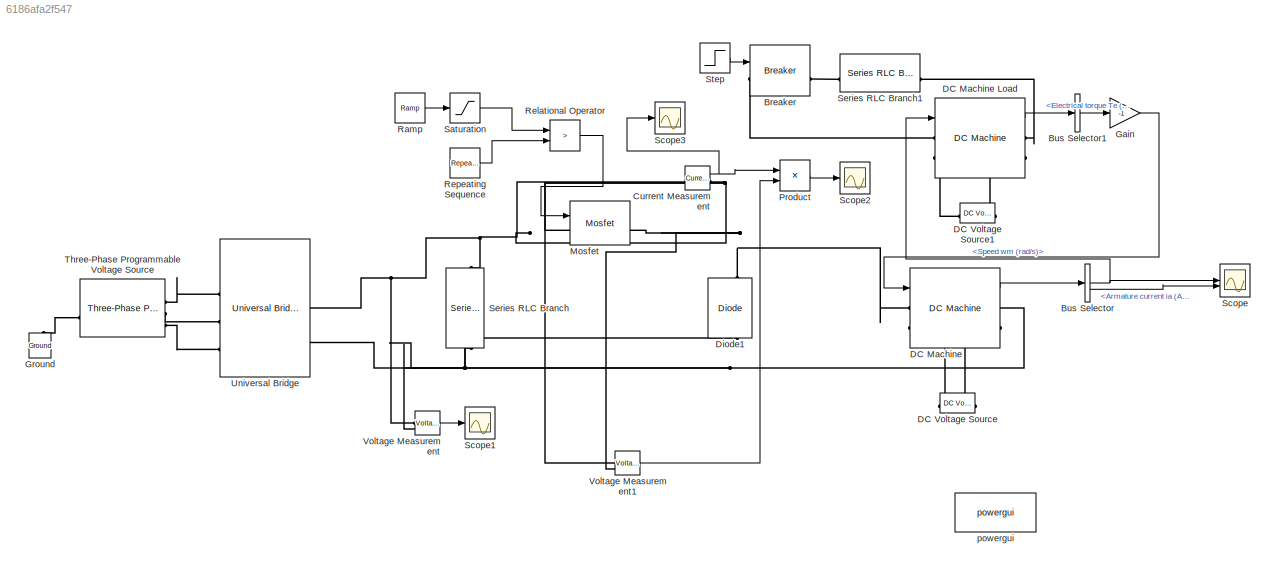
MODEL slx_6186afa2f547
KIND model
CONFIG AbsTol = auto
CONFIG EnableMultiTasking = off
CONFIG FixedStep = auto
CONFIG MaxStep = 1e-5
CONFIG MinStep = auto
CONFIG RelTol = 1e-3
CONFIG SampleTimeConstraint = Unconstrained
CONFIG SolverName = ode23t
CONFIG StartTime = 0.0
CONFIG StopTime = 4
BLOCK [Reference] Breaker  REF=spsBreakerLib/Breaker
  LibrarySourceBlock = sps_lib/Power Grid Elements/Breaker
  SourceBlock = spsBreakerLib/Breaker
  SourceType = Breaker
BLOCK [BusSelector] Bus Selector
  OutputSignals = Speed wm (rad/s),Armature current ia (A)
BLOCK [BusSelector] Bus Selector1
  OutputSignals = Electrical torque Te (n m)
BLOCK [Reference] Current Measurement  REF=spsCurrentMeasurementLib/Current Measurement
  LibrarySourceBlock = sps_lib/Sensors and Measurements/Current Measurement
  SourceBlock = spsCurrentMeasurementLib/Current Measurement
  SourceType = Current Measurement
  UserDataPersistent = on
BLOCK [Reference] DC Machine  REF=spsDCMachineLib/DC Machine
  LibrarySourceBlock = sps_lib/Electrical Machines/DC Machine
  SourceBlock = spsDCMachineLib/DC Machine
  SourceType = DC machine
BLOCK [Reference] DC Machine Load  REF=spsDCMachineLib/DC Machine
  LibrarySourceBlock = sps_lib/Electrical Machines/DC Machine
  SourceBlock = spsDCMachineLib/DC Machine
  SourceType = DC machine
BLOCK [Reference] DC Voltage Source  REF=spsDCVoltageSourceLib/DC Voltage Source
  LibrarySourceBlock = sps_lib/Sources/DC Voltage Source
  NameLocation = right
  SourceBlock = spsDCVoltageSourceLib/DC Voltage Source
  SourceType = DC Voltage Source
BLOCK [Reference] DC Voltage Source1  REF=spsDCVoltageSourceLib/DC Voltage Source
  LibrarySourceBlock = sps_lib/Sources/DC Voltage Source
  NameLocation = right
  SourceBlock = spsDCVoltageSourceLib/DC Voltage Source
  SourceType = DC Voltage Source
BLOCK [Reference] Diode1  REF=spsDiodeLib/Diode
  LibrarySourceBlock = sps_lib/Power Electronics/Diode
  NameLocation = right
  SourceBlock = spsDiodeLib/Diode
  SourceType = Diode
BLOCK [Gain] Gain
  Gain = -1
BLOCK [Reference] Ground  REF=spsGroundLib/Ground
  LibrarySourceBlock = sps_lib/Utilities/Ground
  NameLocation = right
  SourceBlock = spsGroundLib/Ground
  SourceType = Ground
BLOCK [Reference] Mosfet  REF=spsMosfetLib/Mosfet
  LibrarySourceBlock = sps_lib/Power Electronics/Mosfet
  SourceBlock = spsMosfetLib/Mosfet
  SourceType = Mosfet
BLOCK [Product] Product
BLOCK [Reference] Ramp  REF=simulink/Sources/Ramp
  SourceBlock = simulink/Sources/Ramp
  SourceType = Ramp
BLOCK [RelationalOperator] Relational Operator
  InputSameDT = off
  Operator = >
  OutDataTypeStr = boolean
  RndMeth = Simplest
BLOCK [Reference] Repeating Sequence  REF=simulink/Sources/Repeating
Sequence
  SourceBlock = simulink/Sources/Repeating\nSequence
  SourceType = Repeating table
BLOCK [Saturate] Saturation
  LowerLimit = 0
  UpperLimit = 0.85
BLOCK [Scope] Scope
  ActiveDisplayYMaximum = 176.55543890801584
  ActiveDisplayYMinimum = -11.096977701388706
  Floating = off
  GraphicalSettings = {"Style":{"BackgroundColor":[1,1,1],"AxesColor":[1,1,1],"LabelsColor":[0.14901960784313725,0.14901960784313725,0.14901960784313725],"PreserveColors":false,"Visible":[true,true],"LineStyle":["-","-"],"LineWidth":[1.5,1.5],"BarWidth":[0.9,0.9],"LineColor":[[0.9607843137254902,0.4666666666666667,0.1607843137254902],[0.06666666666666667,0.44313725490196076,0.7450980392156863]],"LineFaceAlpha":[1,1],"L...<+2495ch>
  LayoutDimensionsString = [1,1]
  MultipleDisplayCache = [{"MaxYLimMag":168.88504740631285,"MaxYLimReal":176.55543890801584,"MinYLimMag":0,"MinYLimReal":-11.096977701388706,"PlotAsMagnitudePhase":false,"ShowGrid":true,"ShowLegend":true,"Title":"%<SignalLabel>","YLabel":""}]
  NumInputPorts = 2
  ScopeFrameLocation = window
  ShowLegend = on
  WasSavedAsWebScope = on
  WindowPosition = [770.000000,50.000000,766.000000,881.000000,]
BLOCK [Scope] Scope1
  ActiveDisplayYMaximum = 264.4727330125051
  ActiveDisplayYMinimum = 139.47565629905122
  DataLoggingVariableName = ScopeData1
  Floating = off
  GraphicalSettings = {"Style":{"BackgroundColor":[0.12941176470588237,0.12941176470588237,0.12941176470588237],"AxesColor":[0.07058823529411765,0.07058823529411765,0.07058823529411765],"LabelsColor":[0.8509803921568627,0.8509803921568627,0.8509803921568627],"PreserveColors":false,"Visible":[true],"LineStyle":["-"],"LineWidth":[1.5],"BarWidth":[0.9],"LineColor":["auto"],"LineFaceAlpha":[1],"LineEdgeAlpha":[1],"Marker":...<+2338ch>
  MultipleDisplayCache = [{"MaxYLimMag":238.64852082267427,"MaxYLimReal":264.4727330125051,"MinYLimMag":0,"MinYLimReal":139.47565629905122,"PlotAsMagnitudePhase":false,"ShowGrid":true,"ShowLegend":false,"Title":"%<SignalLabel>","YLabel":""}]
  NumInputPorts = 1
  ScopeFrameLocation = window
  WasSavedAsWebScope = on
  WindowPosition = [-1128.000000,199.000000,558.000000,419.000000,]
BLOCK [Scope] Scope2
  ActiveDisplayYMaximum = 296.10934739826007
  ActiveDisplayYMinimum = -195.94044100285524
  DataLoggingVariableName = ScopeData2
  Floating = off
  GraphicalSettings = {"Style":{"BackgroundColor":[1,1,1],"AxesColor":[1,1,1],"LabelsColor":[0,0,0],"PreserveColors":false,"Visible":[true],"LineStyle":["-"],"LineWidth":[1.5],"BarWidth":[0.9],"LineColor":["auto"],"LineFaceAlpha":[1],"LineEdgeAlpha":[1],"Marker":["none"],"FontSize":8.5,"LineTrueColor":[[0.9294117647058824,0.6941176470588235,0.12549019607843137]],"ChannelNames":"","DefaultLegendLabel":["Product"],"PlotT...<+2373ch>
  MultipleDisplayCache = [{"MaxYLimMag":9.00947007254807,"MaxYLimReal":296.10934739826007,"MinYLimMag":0,"MinYLimReal":-195.94044100285524,"PlotAsMagnitudePhase":false,"ShowGrid":true,"ShowLegend":false,"Title":"%<SignalLabel>","YLabel":""}]
  NumInputPorts = 1
  ScopeFrameLocation = window
  Visible = on
  WasSavedAsWebScope = on
  WindowPosition = [441.000000,251.000000,560.000000,420.000000,]
BLOCK [Scope] Scope3
  ActiveDisplayYMaximum = 20.244410717271258
  ActiveDisplayYMinimum = -2.2493956352526823
  DataLoggingVariableName = ScopeData3
  Floating = off
  GraphicalSettings = {"Style":{"BackgroundColor":[0.12941176470588237,0.12941176470588237,0.12941176470588237],"AxesColor":[0.07058823529411765,0.07058823529411765,0.07058823529411765],"LabelsColor":[0.8509803921568627,0.8509803921568627,0.8509803921568627],"PreserveColors":false,"Visible":[true,true,true,true,true,true,true],"LineStyle":["-","-","-","-","-","-","-"],"LineWidth":[1.5,1.5,1.5,1.5,1.5,1.5,1.5],"BarWidth...<+2802ch>
  MultipleDisplayCache = [{"MaxYLimMag":20.244410717271258,"MaxYLimReal":20.244410717271258,"MinYLimMag":0,"MinYLimReal":-2.2493956352526823,"PlotAsMagnitudePhase":false,"ShowGrid":true,"ShowLegend":false,"Title":"%<SignalLabel>","YLabel":""}]
  NumInputPorts = 1
  ScopeFrameLocation = window
  WasSavedAsWebScope = on
  WindowPosition = [488.000000,270.000000,560.000000,420.000000,]
BLOCK [Reference] Series RLC Branch  REF=spsSeriesRLCBranchLib/Series RLC Branch
  LibrarySourceBlock = sps_lib/Passives/Series RLC Branch
  NameLocation = left
  SourceBlock = spsSeriesRLCBranchLib/Series RLC Branch
  SourceType = Series RLC Branch
BLOCK [Reference] Series RLC Branch1  REF=spsSeriesRLCBranchLib/Series RLC Branch
  LibrarySourceBlock = sps_lib/Passives/Series RLC Branch
  SourceBlock = spsSeriesRLCBranchLib/Series RLC Branch
  SourceType = Series RLC Branch
BLOCK [Step] Step
  SampleTime = 0
  Time = 2.5
BLOCK [Reference] Three-Phase Programmable Voltage Source  REF=spsThreePhaseProgrammableVoltageSourceLib/Three-Phase
Programmable
Voltage Source
  LibrarySourceBlock = sps_lib/Sources/Three-Phase\nProgrammable\nVoltage Source
  SourceBlock = spsThreePhaseProgrammableVoltageSourceLib/Three-Phase\nProgrammable\nVoltage Source
  SourceType = Three-Phase Programmable Voltage Source
BLOCK [Reference] Universal Bridge  REF=spsUniversalBridgeLib/Universal Bridge
  LibrarySourceBlock = sps_lib/Power Electronics/Universal Bridge
  SourceBlock = spsUniversalBridgeLib/Universal Bridge
  SourceType = Universal Bridge
BLOCK [Reference] Voltage Measurement  REF=spsVoltageMeasurementLib/Voltage Measurement
  LibrarySourceBlock = sps_lib/Sensors and Measurements/Voltage Measurement
  SourceBlock = spsVoltageMeasurementLib/Voltage Measurement
  SourceType = Voltage Measurement
  UserDataPersistent = on
BLOCK [Reference] Voltage Measurement1  REF=spsVoltageMeasurementLib/Voltage Measurement
  LibrarySourceBlock = sps_lib/Sensors and Measurements/Voltage Measurement
  SourceBlock = spsVoltageMeasurementLib/Voltage Measurement
  SourceType = Voltage Measurement
  UserDataPersistent = on
BLOCK [Reference] powergui  REF=sps_lib/powergui
  LibrarySourceBlock = sps_lib/powergui
  Priority = 1
  SourceBlock = sps_lib/powergui
  SourceType = PSB option menu block
LINE Bus Selector1:1 -> Gain:1
NET Bus Selector:1 -> DC Machine Load:1, Scope:1
LINE Bus Selector:2 -> Scope:2
NET Current Measurement:1 -> Product:1, Scope3:1
LINE DC Machine Load:1 -> Bus Selector1:1
LINE DC Machine:1 -> Bus Selector:1
LINE Gain:1 -> DC Machine:1
LINE Product:1 -> Scope2:1
LINE Ramp:1 -> Saturation:1
LINE Relational Operator:1 -> Mosfet:1
LINE Repeating Sequence:1 -> Relational Operator:2
LINE Saturation:1 -> Relational Operator:1
LINE Step:1 -> Breaker:1
LINE Voltage Measurement1:1 -> Product:2
LINE Voltage Measurement:1 -> Scope1:1
PLINE Breaker:LConn1 -- DC Machine Load:LConn1
PLINE Breaker:RConn1 -- Series RLC Branch1:LConn1
PNET net1: Current Measurement:LConn1 -- Series RLC Branch:LConn1 -- Universal Bridge:RConn1 -- Voltage Measurement:LConn1
PNET net2: Current Measurement:RConn1 -- Mosfet:LConn1 -- Voltage Measurement1:LConn1
PLINE DC Machine Load:LConn2 -- DC Voltage Source1:RConn1
PLINE DC Machine Load:RConn1 -- Series RLC Branch1:RConn1
PLINE DC Machine Load:RConn2 -- DC Voltage Source1:LConn1
PNET net3: DC Machine:LConn1 -- Diode1:RConn1 -- Mosfet:RConn1 -- Voltage Measurement1:LConn2
PLINE DC Machine:LConn2 -- DC Voltage Source:RConn1
PNET net4: DC Machine:RConn1 -- Diode1:LConn1 -- Series RLC Branch:RConn1 -- Universal Bridge:RConn2 -- Voltage Measurement:LConn2
PLINE DC Machine:RConn2 -- DC Voltage Source:LConn1
PLINE Ground:LConn1 -- Three-Phase Programmable Voltage Source:LConn1
PLINE Three-Phase Programmable Voltage Source:RConn1 -- Universal Bridge:LConn1
PLINE Three-Phase Programmable Voltage Source:RConn2 -- Universal Bridge:LConn2
PLINE Three-Phase Programmable Voltage Source:RConn3 -- Universal Bridge:LConn3
note: NET lines group one-source signal fan-out (src -> all destinations, sorted); 1:1 wires keep LINE; PNET lines group multi-terminal physical nets as a canonical sorted terminal list (undirected conserving connections); 2-terminal nets keep the pairwise PLINE form
